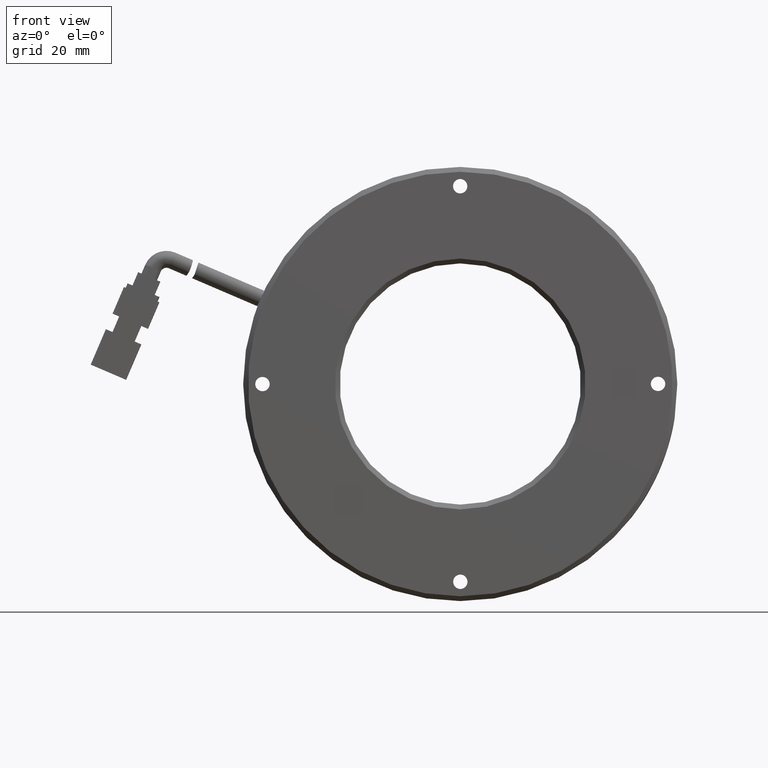
[diagram: clean part render]
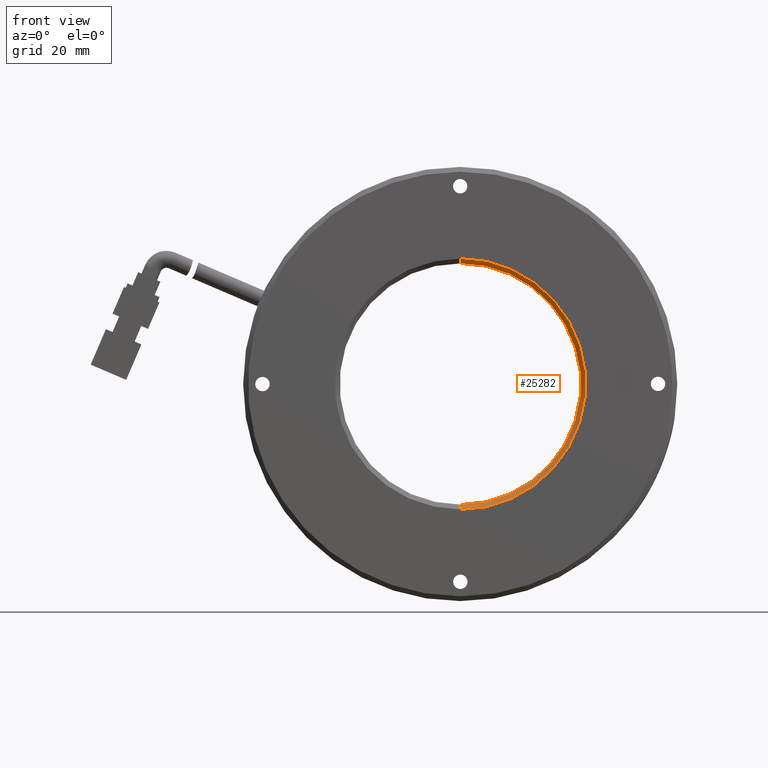
[diagram: same view with one face highlighted and labeled with its STEP entity id]
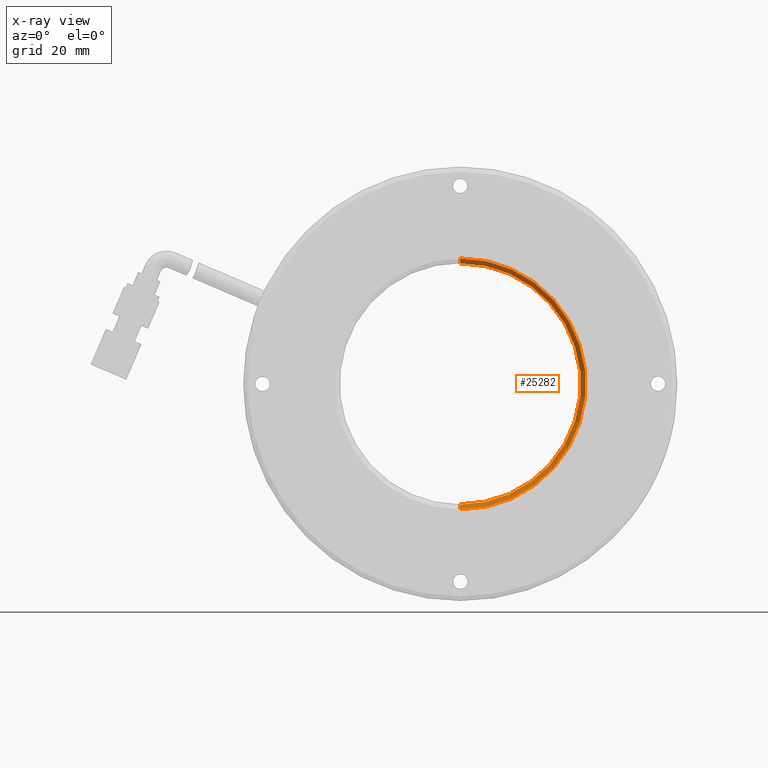
[diagram: x-ray of the same camera — body ghosted, the highlighted face saturated]
A machine part, front view. The second image highlights one B-rep face of the part: STEP entity #25282.
The next image is the same camera in x-ray: the body ghosted, the highlighted face saturated — about 0% of this face is hidden behind the body in this view.
In plain terms, the highlighted conical surface has half-angle 45 deg.
Its self-contained STEP definition (entity closure, byte-faithful):
#375 = VERTEX_POINT ( 'NONE', #32683 ) ;
#2531 = DIRECTION ( 'NONE',  ( 0.0000000000000000000, -3.469446951953614200E-017, -1.000000000000000000 ) ) ;
#3024 = DIRECTION ( 'NONE',  ( 0.0000000000000000000, -0.7071067811865536800, -0.7071067811865414700 ) ) ;
#4297 = EDGE_LOOP ( 'NONE', ( #7788, #14272, #35400, #32200 ) ) ;
#6280 = VECTOR ( 'NONE', #12535, 1000.000000000000000 ) ;
#6715 = VERTEX_POINT ( 'NONE', #37501 ) ;
#7788 = ORIENTED_EDGE ( 'NONE', *, *, #22502, .F. ) ;
#7931 = VECTOR ( 'NONE', #3024, 1000.000000000000000 ) ;
#8902 = LINE ( 'NONE', #40080, #7931 ) ;
#11385 = AXIS2_PLACEMENT_3D ( 'NONE', #33425, #14932, #36538 ) ;
#12535 = DIRECTION ( 'NONE',  ( 8.659560562354857700E-017, -0.7071067811865536800, 0.7071067811865414700 ) ) ;
#12963 = VERTEX_POINT ( 'NONE', #14026 ) ;
#14026 = CARTESIAN_POINT ( 'NONE',  ( 3.571428571428568500, -1.376447876447878900, 25.99999999999998200 ) ) ;
#14228 = EDGE_CURVE ( 'NONE', #26017, #6715, #8902, .T. ) ;
#14272 = ORIENTED_EDGE ( 'NONE', *, *, #32575, .F. ) ;
#14932 = DIRECTION ( 'NONE',  ( 0.0000000000000000000, -1.000000000000000000, 0.0000000000000000000 ) ) ;
#19468 = CIRCLE ( 'NONE', #19971, 25.00000000000000000 ) ;
#19971 = AXIS2_PLACEMENT_3D ( 'NONE', #39599, #21048, #2531 ) ;
#20624 = FACE_OUTER_BOUND ( 'NONE', #4297, .T. ) ;
#20948 = CIRCLE ( 'NONE', #11385, 25.99999999999998200 ) ;
#21048 = DIRECTION ( 'NONE',  ( 0.0000000000000000000, -1.000000000000000000, 0.0000000000000000000 ) ) ;
#22458 = CARTESIAN_POINT ( 'NONE',  ( 3.571428571428565800, -1.376447876447879400, 0.0000000000000000000 ) ) ;
#22502 = EDGE_CURVE ( 'NONE', #375, #12963, #30942, .T. ) ;
#24864 = CARTESIAN_POINT ( 'NONE',  ( 3.571428571428568500, -1.376447876447879400, 25.99999999999998200 ) ) ;
#25282 = ADVANCED_FACE ( 'NONE', ( #20624 ), #33217, .F. ) ;
#26017 = VERTEX_POINT ( 'NONE', #35809 ) ;
#27019 = AXIS2_PLACEMENT_3D ( 'NONE', #22458, #37875, #34894 ) ;
#30942 = LINE ( 'NONE', #24864, #6280 ) ;
#32200 = ORIENTED_EDGE ( 'NONE', *, *, #35312, .T. ) ;
#32575 = EDGE_CURVE ( 'NONE', #26017, #375, #19468, .T. ) ;
#32683 = CARTESIAN_POINT ( 'NONE',  ( 3.571428571428568500, -0.3764478764478815200, 25.00000000000000000 ) ) ;
#33217 = CONICAL_SURFACE ( 'NONE', #27019, 25.99999999999998200, 0.7853981633974396200 ) ;
#33425 = CARTESIAN_POINT ( 'NONE',  ( 3.571428571428565800, -1.376447876447878900, 0.0000000000000000000 ) ) ;
#34894 = DIRECTION ( 'NONE',  ( 0.0000000000000000000, 0.0000000000000000000, -1.000000000000000000 ) ) ;
#35312 = EDGE_CURVE ( 'NONE', #6715, #12963, #20948, .T. ) ;
#35400 = ORIENTED_EDGE ( 'NONE', *, *, #14228, .T. ) ;
#35809 = CARTESIAN_POINT ( 'NONE',  ( 3.571428571428565800, -0.3764478764478824100, -25.00000000000000000 ) ) ;
#36538 = DIRECTION ( 'NONE',  ( 0.0000000000000000000, 0.0000000000000000000, -1.000000000000000000 ) ) ;
#37501 = CARTESIAN_POINT ( 'NONE',  ( 3.571428571428565800, -1.376447876447878900, -25.99999999999998200 ) ) ;
#37875 = DIRECTION ( 'NONE',  ( 0.0000000000000000000, -1.000000000000000000, 0.0000000000000000000 ) ) ;
#39599 = CARTESIAN_POINT ( 'NONE',  ( 3.571428571428565800, -0.3764478764478815200, 0.0000000000000000000 ) ) ;
#40080 = CARTESIAN_POINT ( 'NONE',  ( 3.571428571428565800, -1.376447876447879400, -25.99999999999998200 ) ) ;